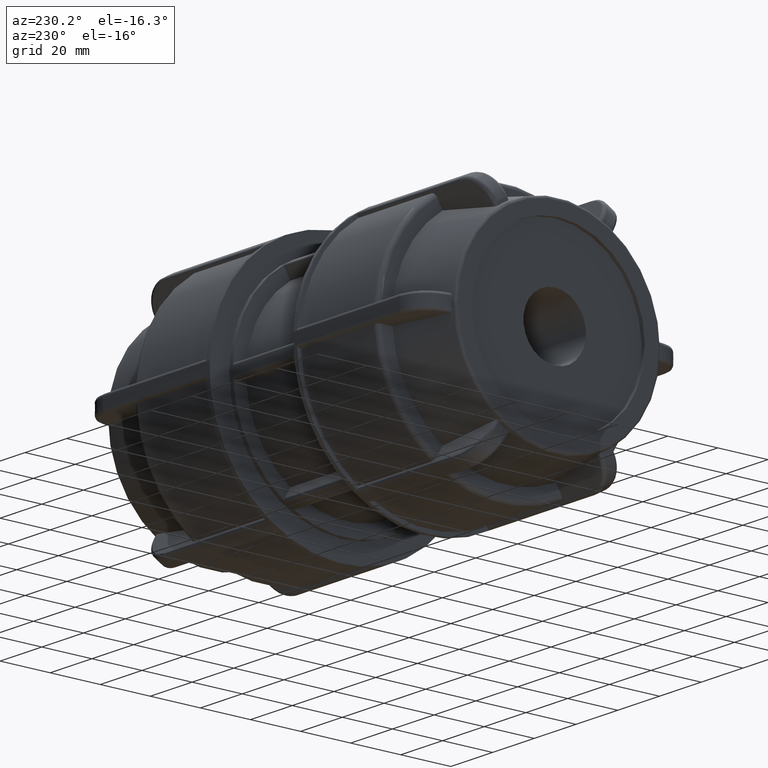
[diagram: clean part render]
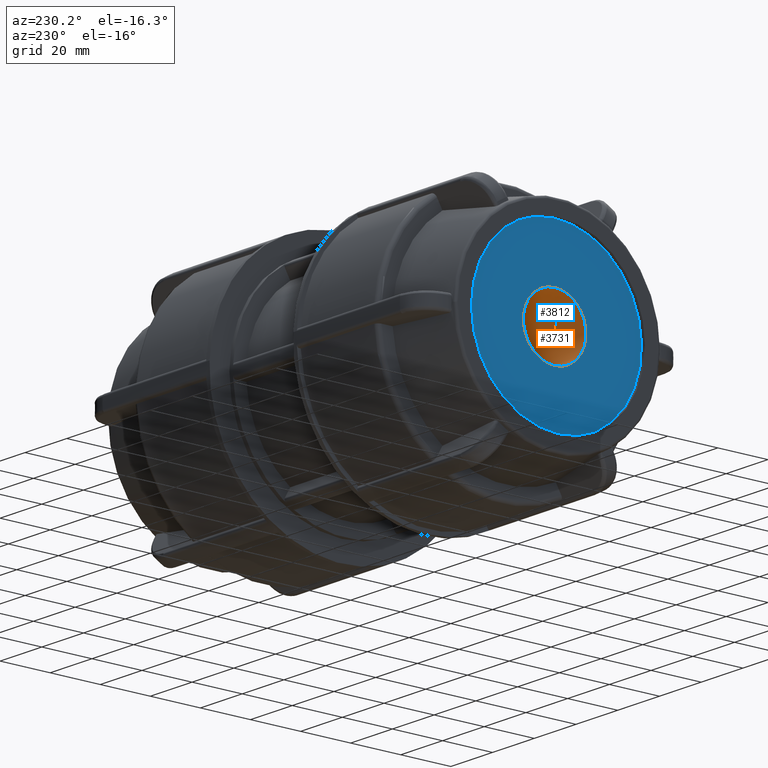
[diagram: same view with the hole feature highlighted: cylindrical wall and planar end face, labeled with their STEP entity ids]
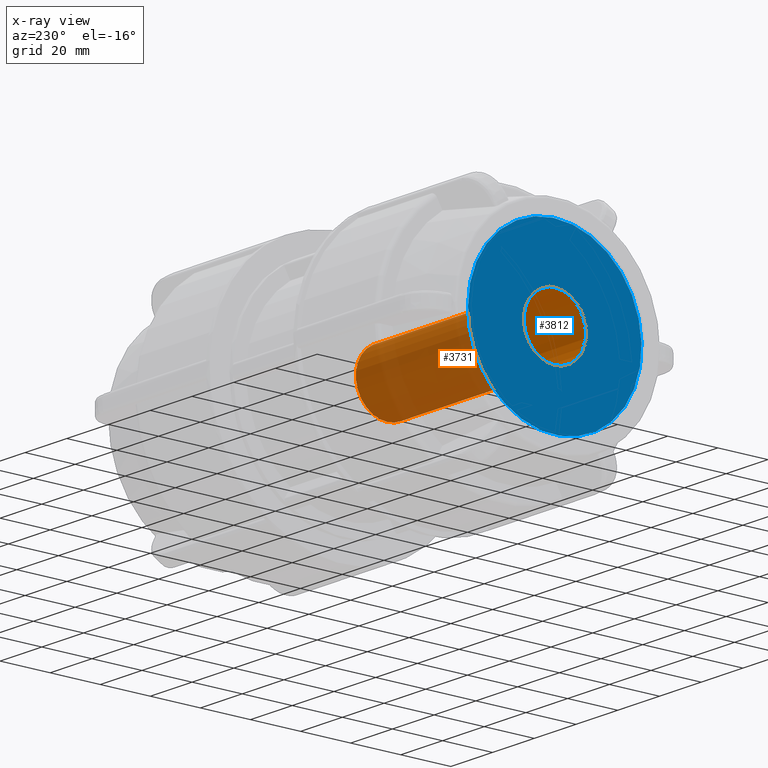
[diagram: x-ray of the same camera — body ghosted, the hole faces saturated]
A machine part, auxiliary view. The highlighted faces form one hole feature of diameter 25 mm: the cylindrical wall (entity #3731, orange) and its adjacent planar end face (entity #3812, blue) — they share a circular edge in the B-rep.
The next image is the same camera in x-ray (body ghosted, the hole faces saturated) — the bore reads through the body.
Wall:
#194=FACE_BOUND('',#583,.T.);
#345=FACE_OUTER_BOUND('',#582,.T.);
#582=EDGE_LOOP('',(#2643));
#583=EDGE_LOOP('',(#2644));
#1296=CIRCLE('',#4013,12.5);
#1297=CIRCLE('',#4014,12.5);
#1555=VERTEX_POINT('',#5698);
#1556=VERTEX_POINT('',#5700);
#1968=EDGE_CURVE('',#1555,#1555,#1296,.T.);
#1969=EDGE_CURVE('',#1556,#1556,#1297,.T.);
#2643=ORIENTED_EDGE('',*,*,#1968,.F.);
#2644=ORIENTED_EDGE('',*,*,#1969,.T.);
#3623=CYLINDRICAL_SURFACE('',#4012,12.5);
#3731=ADVANCED_FACE('',(#345,#194),#3623,.F.);
#4012=AXIS2_PLACEMENT_3D('',#5697,#4603,#4604);
#4013=AXIS2_PLACEMENT_3D('',#5699,#4605,#4606);
#4014=AXIS2_PLACEMENT_3D('',#5701,#4607,#4608);
#4603=DIRECTION('center_axis',(1.,3.06161699786838E-16,0.));
#4604=DIRECTION('ref_axis',(0.,0.,-1.));
#4605=DIRECTION('center_axis',(1.,3.06161699786838E-16,0.));
#4606=DIRECTION('ref_axis',(0.,0.,-1.));
#4607=DIRECTION('center_axis',(1.,3.06161699786838E-16,0.));
#4608=DIRECTION('ref_axis',(0.,0.,-1.));
#5697=CARTESIAN_POINT('Origin',(-83.5,-2.5564501932201E-14,0.));
#5698=CARTESIAN_POINT('',(-81.83,-2.65840203924912E-14,12.5));
#5699=CARTESIAN_POINT('Origin',(-81.83,-2.5053211893557E-14,0.));
#5700=CARTESIAN_POINT('',(-1.49999999999997,1.07156594925393E-15,12.5));
#5701=CARTESIAN_POINT('Origin',(-1.49999999999997,-4.59242549680261E-16,
0.));
End face:
#201=FACE_BOUND('',#671,.T.);
#265=PLANE('',#4168);
#426=FACE_OUTER_BOUND('',#670,.T.);
#670=EDGE_LOOP('',(#3028));
#671=EDGE_LOOP('',(#3029));
#1296=CIRCLE('',#4013,12.5);
#1381=CIRCLE('',#4169,34.65);
#1555=VERTEX_POINT('',#5698);
#1696=VERTEX_POINT('',#6763);
#1968=EDGE_CURVE('',#1555,#1555,#1296,.T.);
#2183=EDGE_CURVE('',#1696,#1696,#1381,.T.);
#3028=ORIENTED_EDGE('',*,*,#2183,.F.);
#3029=ORIENTED_EDGE('',*,*,#1968,.T.);
#3812=ADVANCED_FACE('',(#426,#201),#265,.F.);
#4013=AXIS2_PLACEMENT_3D('',#5699,#4605,#4606);
#4168=AXIS2_PLACEMENT_3D('',#6762,#4993,#4994);
#4169=AXIS2_PLACEMENT_3D('',#6764,#4995,#4996);
#4605=DIRECTION('center_axis',(1.,3.06161699786838E-16,0.));
#4606=DIRECTION('ref_axis',(0.,0.,-1.));
#4993=DIRECTION('center_axis',(1.,3.06161699786838E-16,0.));
#4994=DIRECTION('ref_axis',(0.,0.,-1.));
#4995=DIRECTION('center_axis',(1.,3.06161699786838E-16,0.));
#4996=DIRECTION('ref_axis',(0.,0.,-1.));
#5698=CARTESIAN_POINT('',(-81.83,-2.65840203924912E-14,12.5));
#5699=CARTESIAN_POINT('Origin',(-81.83,-2.5053211893557E-14,0.));
#6762=CARTESIAN_POINT('Origin',(-81.83,11.5,0.));
#6763=CARTESIAN_POINT('',(-81.83,19.9812405833337,-28.3085238885912));
#6764=CARTESIAN_POINT('Origin',(-81.83,-2.5053211893557E-14,0.));